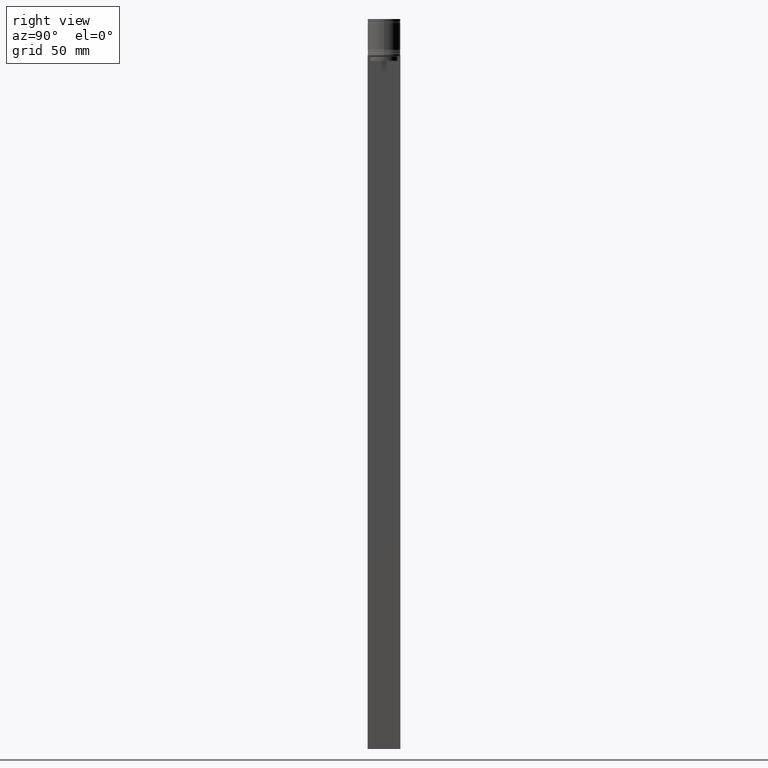
[diagram: clean part render]
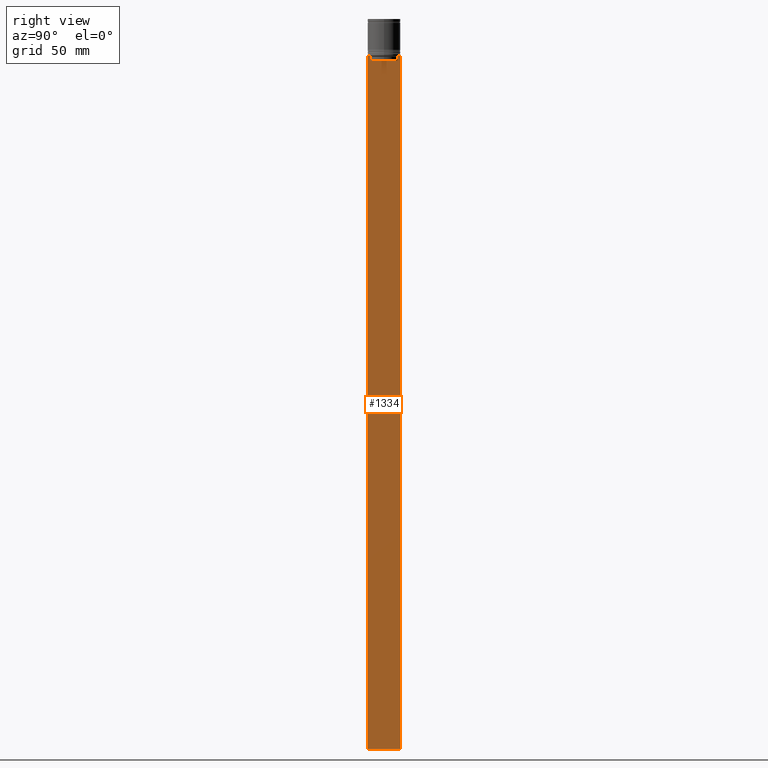
[diagram: same view with one face highlighted and labeled with its STEP entity id]
A machine part, right view. The second image highlights one B-rep face of the part: STEP entity #1334.
In plain terms, the highlighted planar face has unit normal (-1, 0, 0).
Its self-contained STEP definition (entity closure, byte-faithful):
#18 = ORIENTED_EDGE ( 'NONE', *, *, #997, .T. ) ;
#36 = CARTESIAN_POINT ( 'NONE',  ( 0.5000000000000000000, -10.00000000000000178, -446.5000000000000000 ) ) ;
#50 = CARTESIAN_POINT ( 'NONE',  ( 0.5000000000000000000, 8.385105843100610912, -23.00000000000000000 ) ) ;
#62 = CARTESIAN_POINT ( 'NONE',  ( 0.5000000000000000000, 8.552060201981371179, -22.83334167021640582 ) ) ;
#71 = VERTEX_POINT ( 'NONE', #2007 ) ;
#95 = VERTEX_POINT ( 'NONE', #564 ) ;
#128 = CARTESIAN_POINT ( 'NONE',  ( 0.5000000000000000000, -8.885943956609226646, -22.50000000000000000 ) ) ;
#139 = EDGE_CURVE ( 'NONE', #1847, #1026, #1830, .T. ) ;
#206 = CARTESIAN_POINT ( 'NONE',  ( 0.5000000000000000000, 9.999999999999998224, -446.5000000000000000 ) ) ;
#239 = CARTESIAN_POINT ( 'NONE',  ( 0.5000000000000000000, -10.00000000000000178, -22.50000000000000000 ) ) ;
#241 = EDGE_LOOP ( 'NONE', ( #1586, #2040, #1741, #1526, #18, #1192, #1425, #1459, #2031, #1329, #606, #740 ) ) ;
#246 = CARTESIAN_POINT ( 'NONE',  ( 0.5000000000000000000, -10.00000000000000178, -446.5000000000000000 ) ) ;
#252 = CARTESIAN_POINT ( 'NONE',  ( 0.5000000000000000000, 8.400000000000000355, -25.50000000000000000 ) ) ;
#264 = CARTESIAN_POINT ( 'NONE',  ( 0.5000000000000000000, -8.385105843100610912, -23.00000000000000000 ) ) ;
#278 = B_SPLINE_CURVE_WITH_KNOTS ( 'NONE', 3,
 ( #756, #1405, #608, #128 ),
 .UNSPECIFIED., .F., .F.,
 ( 4, 4 ),
 ( 0.03898465126933124691, 0.03969388910599652709 ),
 .UNSPECIFIED. ) ;
#368 = EDGE_CURVE ( 'NONE', #1708, #570, #412, .T. ) ;
#399 = DIRECTION ( 'NONE',  ( 0.000000000000000000, 1.000000000000000000, 0.000000000000000000 ) ) ;
#412 = LINE ( 'NONE', #252, #1137 ) ;
#466 = PLANE ( 'NONE',  #1723 ) ;
#519 = EDGE_CURVE ( 'NONE', #1918, #1512, #2042, .T. ) ;
#564 = CARTESIAN_POINT ( 'NONE',  ( 0.5000000000000000000, -9.887365675446622149, -22.50000000000000000 ) ) ;
#569 = LINE ( 'NONE', #884, #603 ) ;
#570 = VERTEX_POINT ( 'NONE', #590 ) ;
#577 = CARTESIAN_POINT ( 'NONE',  ( 0.5000000000000000000, -10.00000000000000178, -22.50000000000000000 ) ) ;
#590 = CARTESIAN_POINT ( 'NONE',  ( 0.5000000000000000000, -8.385105843100610912, -25.50000000000000000 ) ) ;
#603 = VECTOR ( 'NONE', #2000, 1000.000000000000000 ) ;
#606 = ORIENTED_EDGE ( 'NONE', *, *, #817, .F. ) ;
#608 = CARTESIAN_POINT ( 'NONE',  ( 0.5000000000000000000, -8.719005764482785636, -22.66667454151159333 ) ) ;
#614 = VERTEX_POINT ( 'NONE', #264 ) ;
#646 = DIRECTION ( 'NONE',  ( 0.000000000000000000, 0.000000000000000000, 1.000000000000000000 ) ) ;
#682 = CARTESIAN_POINT ( 'NONE',  ( 0.5000000000000000000, 8.385105843100610912, -23.00000000000000000 ) ) ;
#740 = ORIENTED_EDGE ( 'NONE', *, *, #1267, .T. ) ;
#756 = CARTESIAN_POINT ( 'NONE',  ( 0.5000000000000000000, -8.385105843100610912, -23.00000000000000000 ) ) ;
#781 = LINE ( 'NONE', #577, #1801 ) ;
#813 = EDGE_CURVE ( 'NONE', #1512, #1536, #978, .T. ) ;
#817 = EDGE_CURVE ( 'NONE', #940, #1026, #569, .T. ) ;
#856 = DIRECTION ( 'NONE',  ( 0.000000000000000000, -1.000000000000000000, 0.000000000000000000 ) ) ;
#859 = VECTOR ( 'NONE', #946, 1000.000000000000000 ) ;
#884 = CARTESIAN_POINT ( 'NONE',  ( 0.5000000000000000000, 9.999999999999998224, -2.475015605499213844 ) ) ;
#913 = CARTESIAN_POINT ( 'NONE',  ( 0.5000000000000000000, 8.385105843100610912, -25.50000000000000000 ) ) ;
#929 = EDGE_CURVE ( 'NONE', #1536, #1708, #961, .T. ) ;
#938 = CARTESIAN_POINT ( 'NONE',  ( 0.5000000000000000000, -10.00000000000000178, -2.475015605499213844 ) ) ;
#940 = VERTEX_POINT ( 'NONE', #1768 ) ;
#946 = DIRECTION ( 'NONE',  ( 0.000000000000000000, -1.000000000000000000, 0.000000000000000000 ) ) ;
#961 = LINE ( 'NONE', #1281, #1395 ) ;
#978 = B_SPLINE_CURVE_WITH_KNOTS ( 'NONE', 3,
 ( #1359, #1982, #62, #682 ),
 .UNSPECIFIED., .F., .F.,
 ( 4, 4 ),
 ( 0.01511546479386905242, 0.01582316445439077568 ),
 .UNSPECIFIED. ) ;
#993 = CARTESIAN_POINT ( 'NONE',  ( 0.5000000000000000000, 8.885943956609226646, -22.50000000000000000 ) ) ;
#997 = EDGE_CURVE ( 'NONE', #570, #614, #1091, .T. ) ;
#1009 = VECTOR ( 'NONE', #2060, 1000.000000000000000 ) ;
#1026 = VERTEX_POINT ( 'NONE', #206 ) ;
#1080 = FACE_OUTER_BOUND ( 'NONE', #241, .T. ) ;
#1090 = CARTESIAN_POINT ( 'NONE',  ( 0.5000000000000000000, -10.00000000000000178, -2.475015605499213844 ) ) ;
#1091 = LINE ( 'NONE', #1418, #1829 ) ;
#1109 = LINE ( 'NONE', #2064, #859 ) ;
#1131 = LINE ( 'NONE', #1621, #1865 ) ;
#1137 = VECTOR ( 'NONE', #1503, 1000.000000000000000 ) ;
#1192 = ORIENTED_EDGE ( 'NONE', *, *, #1394, .T. ) ;
#1234 = VERTEX_POINT ( 'NONE', #239 ) ;
#1237 = DIRECTION ( 'NONE',  ( 0.000000000000000000, 0.000000000000000000, -1.000000000000000000 ) ) ;
#1256 = LINE ( 'NONE', #938, #1937 ) ;
#1267 = EDGE_CURVE ( 'NONE', #940, #1918, #1109, .T. ) ;
#1281 = CARTESIAN_POINT ( 'NONE',  ( 0.5000000000000000000, 8.385105843100610912, 0.000000000000000000 ) ) ;
#1329 = ORIENTED_EDGE ( 'NONE', *, *, #139, .T. ) ;
#1334 = ADVANCED_FACE ( 'NONE', ( #1080 ), #466, .F. ) ;
#1359 = CARTESIAN_POINT ( 'NONE',  ( 0.5000000000000000000, 8.885943956609226646, -22.50000000000000000 ) ) ;
#1394 = EDGE_CURVE ( 'NONE', #614, #71, #278, .T. ) ;
#1395 = VECTOR ( 'NONE', #1926, 1000.000000000000000 ) ;
#1405 = CARTESIAN_POINT ( 'NONE',  ( 0.5000000000000000000, -8.552060194457766329, -22.83334167772666845 ) ) ;
#1418 = CARTESIAN_POINT ( 'NONE',  ( 0.5000000000000000000, -8.385105843100610912, 0.000000000000000000 ) ) ;
#1425 = ORIENTED_EDGE ( 'NONE', *, *, #1528, .T. ) ;
#1459 = ORIENTED_EDGE ( 'NONE', *, *, #1838, .T. ) ;
#1503 = DIRECTION ( 'NONE',  ( 0.000000000000000000, -1.000000000000000000, 0.000000000000000000 ) ) ;
#1512 = VERTEX_POINT ( 'NONE', #993 ) ;
#1526 = ORIENTED_EDGE ( 'NONE', *, *, #368, .T. ) ;
#1528 = EDGE_CURVE ( 'NONE', #71, #95, #1131, .T. ) ;
#1536 = VERTEX_POINT ( 'NONE', #50 ) ;
#1553 = DIRECTION ( 'NONE',  ( 0.000000000000000000, -1.000000000000000000, 0.000000000000000000 ) ) ;
#1586 = ORIENTED_EDGE ( 'NONE', *, *, #519, .T. ) ;
#1620 = CARTESIAN_POINT ( 'NONE',  ( 0.5000000000000000000, 9.887365675446622149, -22.50000000000000000 ) ) ;
#1621 = CARTESIAN_POINT ( 'NONE',  ( 0.5000000000000000000, -10.00000000000000178, -22.50000000000000000 ) ) ;
#1708 = VERTEX_POINT ( 'NONE', #913 ) ;
#1723 = AXIS2_PLACEMENT_3D ( 'NONE', #1090, #1890, #646 ) ;
#1727 = CARTESIAN_POINT ( 'NONE',  ( 0.5000000000000000000, -10.00000000000000178, -22.50000000000000000 ) ) ;
#1741 = ORIENTED_EDGE ( 'NONE', *, *, #929, .T. ) ;
#1768 = CARTESIAN_POINT ( 'NONE',  ( 0.5000000000000000000, 9.999999999999998224, -22.50000000000000000 ) ) ;
#1801 = VECTOR ( 'NONE', #1553, 1000.000000000000000 ) ;
#1829 = VECTOR ( 'NONE', #2057, 1000.000000000000000 ) ;
#1830 = LINE ( 'NONE', #246, #1897 ) ;
#1838 = EDGE_CURVE ( 'NONE', #95, #1234, #781, .T. ) ;
#1847 = VERTEX_POINT ( 'NONE', #36 ) ;
#1865 = VECTOR ( 'NONE', #856, 1000.000000000000000 ) ;
#1890 = DIRECTION ( 'NONE',  ( -1.000000000000000000, 0.000000000000000000, 0.000000000000000000 ) ) ;
#1897 = VECTOR ( 'NONE', #399, 1000.000000000000000 ) ;
#1918 = VERTEX_POINT ( 'NONE', #1620 ) ;
#1926 = DIRECTION ( 'NONE',  ( 0.000000000000000000, 0.000000000000000000, -1.000000000000000000 ) ) ;
#1937 = VECTOR ( 'NONE', #1237, 1000.000000000000000 ) ;
#1982 = CARTESIAN_POINT ( 'NONE',  ( 0.5000000000000000000, 8.719005771582343911, -22.66667453442325453 ) ) ;
#2000 = DIRECTION ( 'NONE',  ( 0.000000000000000000, 0.000000000000000000, -1.000000000000000000 ) ) ;
#2007 = CARTESIAN_POINT ( 'NONE',  ( 0.5000000000000000000, -8.885943956609226646, -22.50000000000000000 ) ) ;
#2030 = EDGE_CURVE ( 'NONE', #1234, #1847, #1256, .T. ) ;
#2031 = ORIENTED_EDGE ( 'NONE', *, *, #2030, .T. ) ;
#2040 = ORIENTED_EDGE ( 'NONE', *, *, #813, .T. ) ;
#2042 = LINE ( 'NONE', #1727, #1009 ) ;
#2057 = DIRECTION ( 'NONE',  ( -0.000000000000000000, -0.000000000000000000, 1.000000000000000000 ) ) ;
#2060 = DIRECTION ( 'NONE',  ( 0.000000000000000000, -1.000000000000000000, 0.000000000000000000 ) ) ;
#2064 = CARTESIAN_POINT ( 'NONE',  ( 0.5000000000000000000, -10.00000000000000178, -22.50000000000000000 ) ) ;